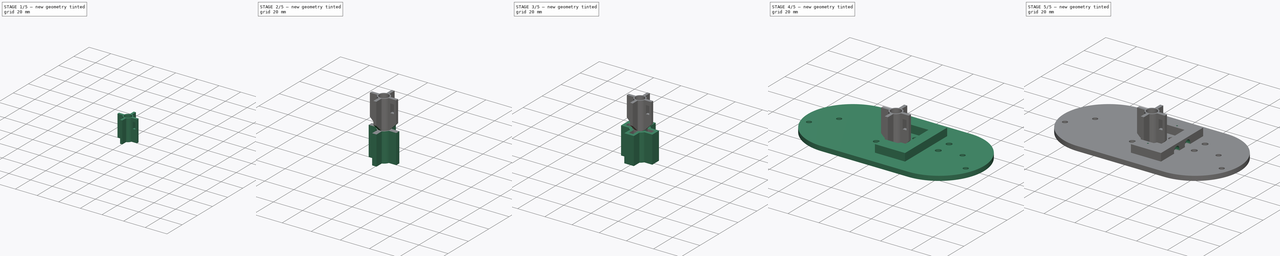
[diagram: build sequence overview — one tinted view per stage of 5, left to right]
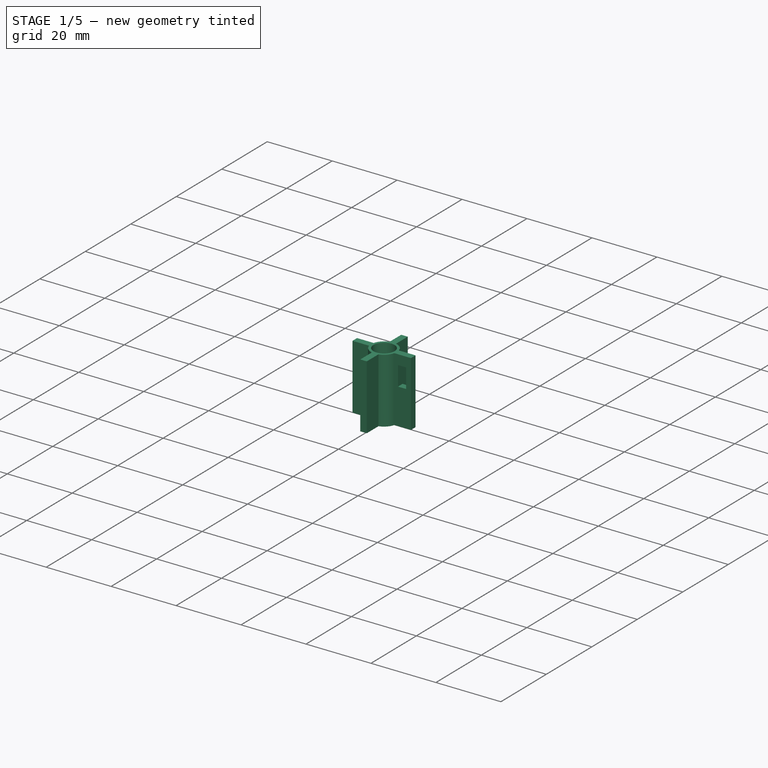
[diagram: stage 1 of 5 — iso view after this stage's code; geometry added in this stage tinted green]
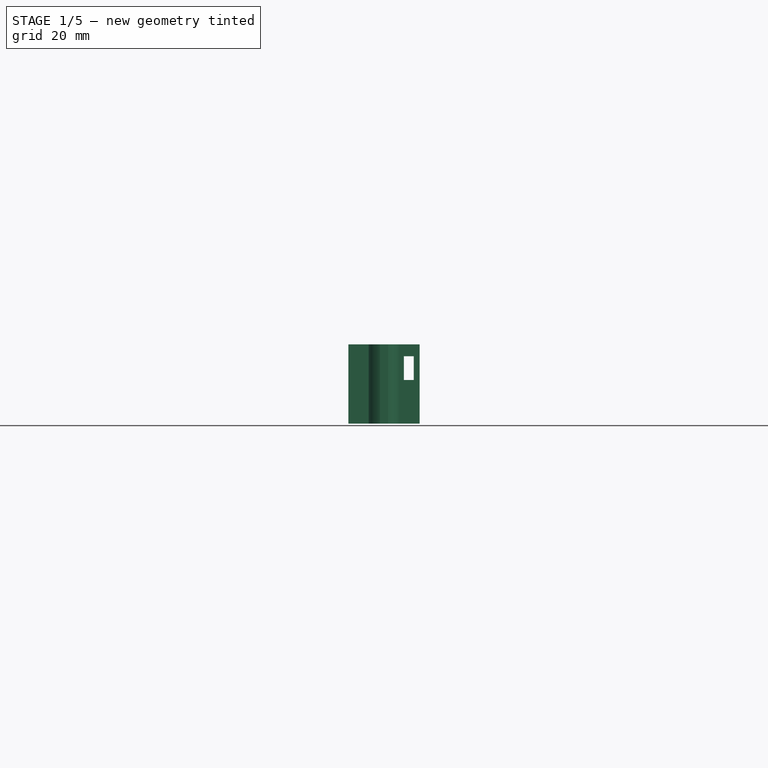
[diagram: stage 1 of 5 — front view after this stage's code; geometry added in this stage tinted green]
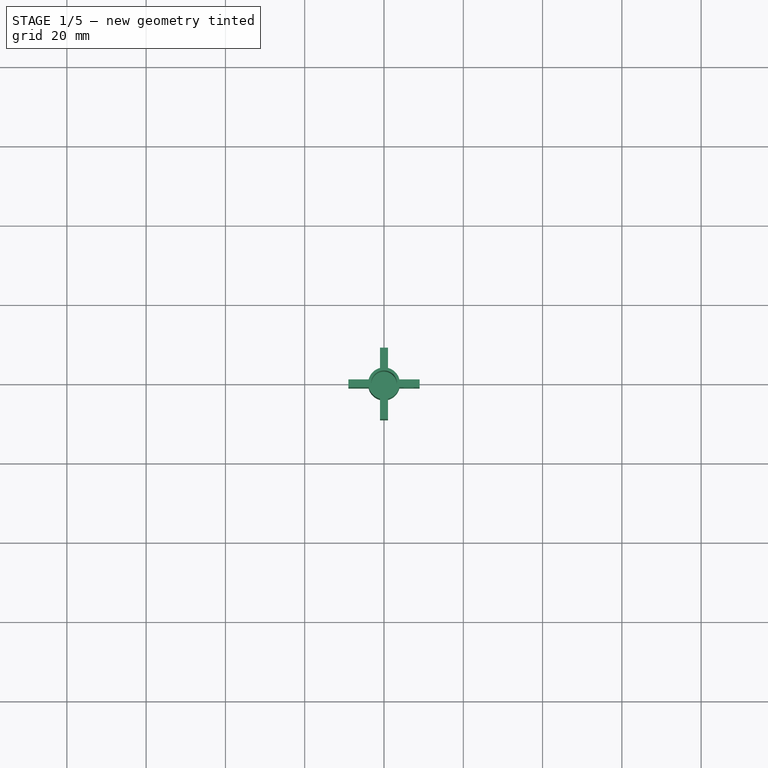
[diagram: stage 1 of 5 — top view after this stage's code; geometry added in this stage tinted green]
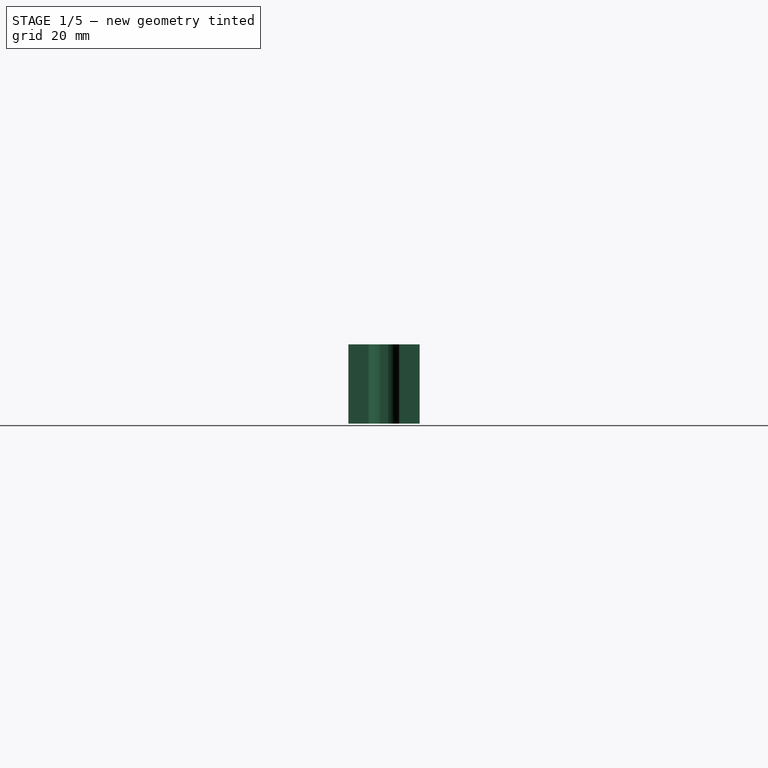
[diagram: stage 1 of 5 — right view after this stage's code; geometry added in this stage tinted green]
FCSTD DOCUMENT  (FreeCAD 0.18.4R)
Label: fulcrum3
License: All rights reserved
LicenseURL: http://en.wikipedia.org/wiki/All_rights_reserved
objects: Sketcher::SketchObject×12, PartDesign::Pocket×6, PartDesign::Pad×5, PartDesign::Body×4, PartDesign::ShapeBinder×3, PartDesign::Mirrored×2, PartDesign::Thickness×1, PartDesign::MultiTransform×1, PartDesign::Hole×1, TechDraw::DrawSVGTemplate×1, TechDraw::DrawViewPart×1, TechDraw::DrawPage×1, PartDesign::Chamfer×1
note: 48 computed .brp shape members not serialized (recipe doc carries the construction recipe); baked Part::Feature solids carry a one-line shape summary decoded from their .brp

FEATURE [Sketcher::SketchObject] Sketch
  MapMode = 5
  Support = -> [XY_Plane]
  sketch-geometry (16):
    g0: ArcOfCircle CenterX=0 CenterY=0 CenterZ=0 NormalX=0 NormalY=0 NormalZ=1 AngleXU=0 Radius=4 StartAngle=3.39427 EndAngle=4.45971
    g1: LineSegment StartX=-1 StartY=9 StartZ=0 EndX=1 EndY=9 EndZ=0
    g2: LineSegment StartX=1 StartY=9 StartZ=0 EndX=1 EndY=3.87298 EndZ=0
    g3: LineSegment StartX=1 StartY=-9 StartZ=0 EndX=-1 EndY=-9 EndZ=0
    g4: LineSegment StartX=-1 StartY=-9 StartZ=0 EndX=-1 EndY=-3.87298 EndZ=0
    g5: LineSegment StartX=-9 StartY=1 StartZ=0 EndX=-3.87298 EndY=1 EndZ=0
    g6: LineSegment StartX=9 StartY=1 StartZ=0 EndX=9 EndY=-1 EndZ=0
    g7: LineSegment StartX=9 StartY=-1 StartZ=0 EndX=3.87298 EndY=-1 EndZ=0
    g8: LineSegment StartX=-9 StartY=-1 StartZ=0 EndX=-9 EndY=1 EndZ=0
    g9: LineSegment StartX=-1 StartY=3.87298 StartZ=0 EndX=-1 EndY=9 EndZ=0
    g10: LineSegment StartX=3.87298 StartY=1 StartZ=0 EndX=9 EndY=1 EndZ=0
    g11: LineSegment StartX=1 StartY=-3.87298 StartZ=0 EndX=1 EndY=-9 EndZ=0
    g12: LineSegment StartX=-3.87298 StartY=-1 StartZ=0 EndX=-9 EndY=-1 EndZ=0
    g13: ArcOfCircle CenterX=0 CenterY=0 CenterZ=0 NormalX=0 NormalY=0 NormalZ=1 AngleXU=0 Radius=4 StartAngle=1.82348 EndAngle=2.88891
    g14: ArcOfCircle CenterX=0 CenterY=0 CenterZ=0 NormalX=0 NormalY=0 NormalZ=1 AngleXU=0 Radius=4 StartAngle=0.25268 EndAngle=1.31812
    g15: ArcOfCircle CenterX=0 CenterY=0 CenterZ=0 NormalX=0 NormalY=0 NormalZ=1 AngleXU=0 Radius=4 StartAngle=4.96507 EndAngle=6.03051
  constraints (43):
    c: Coincident(g0,g-1)
    c: Diameter(g0) = 8
    c: Coincident(g1,g2)
    c: Coincident(g11,g3)
    c: Coincident(g3,g4)
    c: Coincident(g9,g1)
    c: Horizontal(g1)
    c: Horizontal(g3)
    c: Vertical(g2)
    c: Vertical(g4)
    c: Coincident(g10,g6)
    c: Coincident(g6,g7)
    c: Coincident(g12,g8)
    c: Coincident(g8,g5)
    c: Horizontal(g5)
    c: Horizontal(g7)
    c: Vertical(g6)
    c: Vertical(g8)
    c: Symmetric(g1,g3,g0)
    c: Symmetric(g6,g5,g0)
    c: Equal(g2,g5)
    c: Equal(g1,g6)
    c: DistanceX(g1,g1) = 2
    c: DistanceY(g11,g2) = 18
    c: Tangent(g4,g9)
    c: Coincident(g0,g12)
    c: Coincident(g13,g5)
    c: Equal(g0,g13)
    c: Coincident(g14,g2)
    c: Coincident(g13,g9)
    c: Coincident(g0,g13)
    c: Equal(g0,g14)
    c: Coincident(g15,g7)
    c: Coincident(g14,g10)
    c: Coincident(g0,g14)
    c: Equal(g0,g15)
    c: Coincident(g0,g4)
    c: Coincident(g15,g11)
    c: Coincident(g0,g15)
    c: Tangent(g5,g10)
    c: Tangent(g9,g4)
    c: Tangent(g7,g12)
    c: Tangent(g11,g2)
FEATURE [PartDesign::Pad] Pad
  Length = 20
  Length2 = 100
  Profile = -> Sketch
  Refine = true
  Type = 0
FEATURE [Sketcher::SketchObject] Sketch001
  ExternalGeometry = -> [Pad]
  MapMode = 5
  Placement = pos=(0,-1,0) rot=(1,0,0;1.5708rad)
  Support = -> [Pad]
  sketch-geometry (4):
    g0: LineSegment StartX=5 StartY=17 StartZ=0 EndX=7.5 EndY=17 EndZ=0
    g1: LineSegment StartX=7.5 StartY=17 StartZ=0 EndX=7.5 EndY=11 EndZ=0
    g2: LineSegment StartX=7.5 StartY=11 StartZ=0 EndX=5 EndY=11 EndZ=0
    g3: LineSegment StartX=5 StartY=11 StartZ=0 EndX=5 EndY=17 EndZ=0
  constraints (12):
    c: Coincident(g0,g1)
    c: Coincident(g1,g2)
    c: Coincident(g2,g3)
    c: Coincident(g3,g0)
    c: Horizontal(g0)
    c: Horizontal(g2)
    c: Vertical(g1)
    c: Vertical(g3)
    c: DistanceX(g1,g-3) = 1.5
    c: DistanceX(g0,g0) = 2.5
    c: DistanceY(g3,g3) = 6
    c: DistanceY(g0,g-3) = 3
FEATURE [PartDesign::Pocket] Pocket
  BaseFeature = -> Pad
  Length = 5
  Length2 = 100
  Profile = -> Sketch001
  Refine = true
  Type = 1
FEATURE [Sketcher::SketchObject] Sketch002
  MapMode = 5
  Placement = pos=(0,0,20) rot=(0,0,1;0rad)
  Support = -> [Pocket]
  sketch-geometry (1):
    g0: Circle CenterX=0 CenterY=0 CenterZ=0 NormalX=0 NormalY=0 NormalZ=1 AngleXU=0 Radius=3.25
  constraints (2):
    c: Coincident(g0,g-1)
    c: Diameter(g0) = 6.5
FEATURE [PartDesign::Pocket] Pocket001
  BaseFeature = -> Pocket
  Length = 18
  Length2 = 100
  Profile = -> Sketch002
  Refine = true
  Type = 0
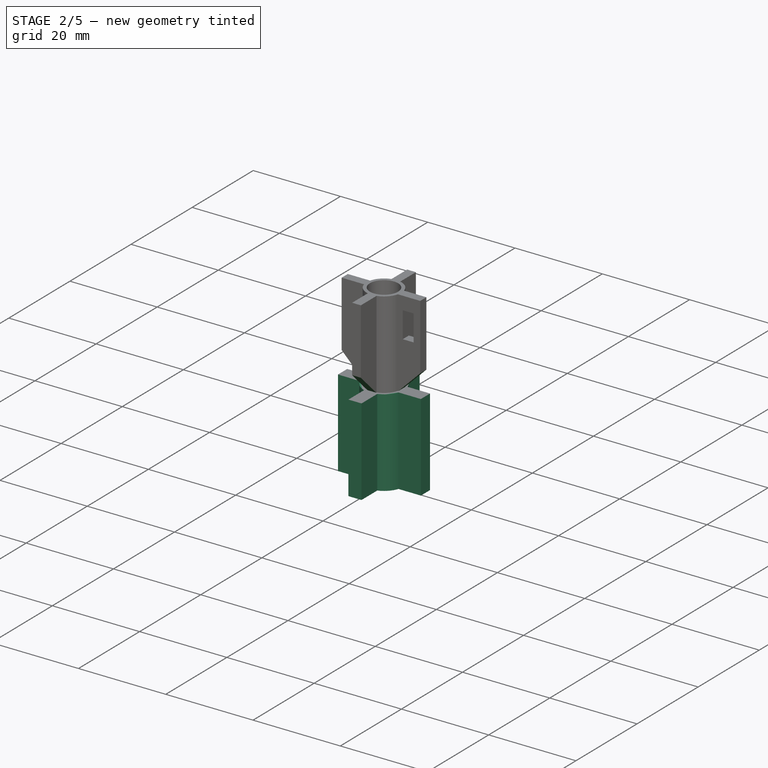
[diagram: stage 2 of 5 — iso view after this stage's code; geometry added in this stage tinted green]
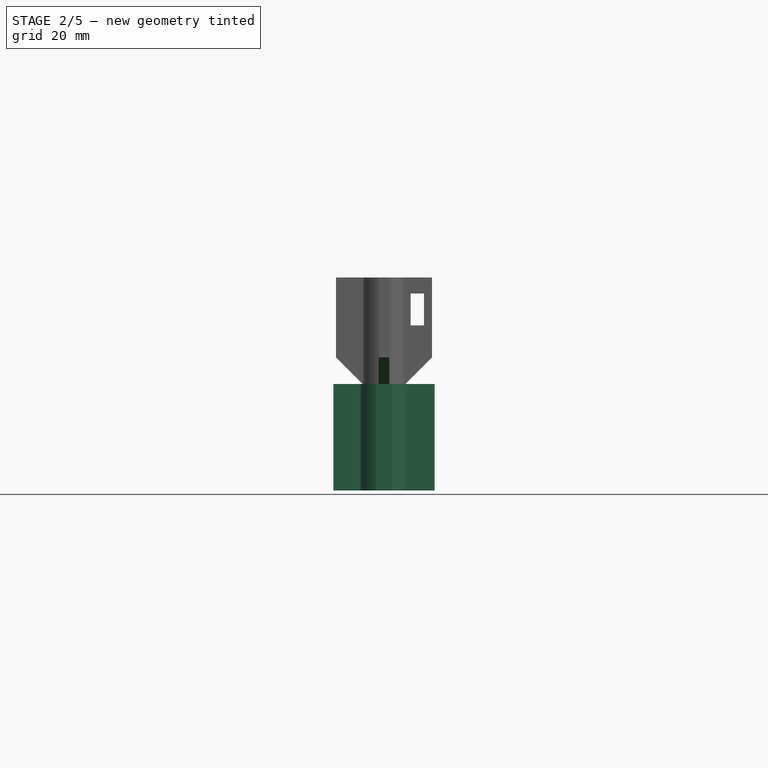
[diagram: stage 2 of 5 — front view after this stage's code; geometry added in this stage tinted green]
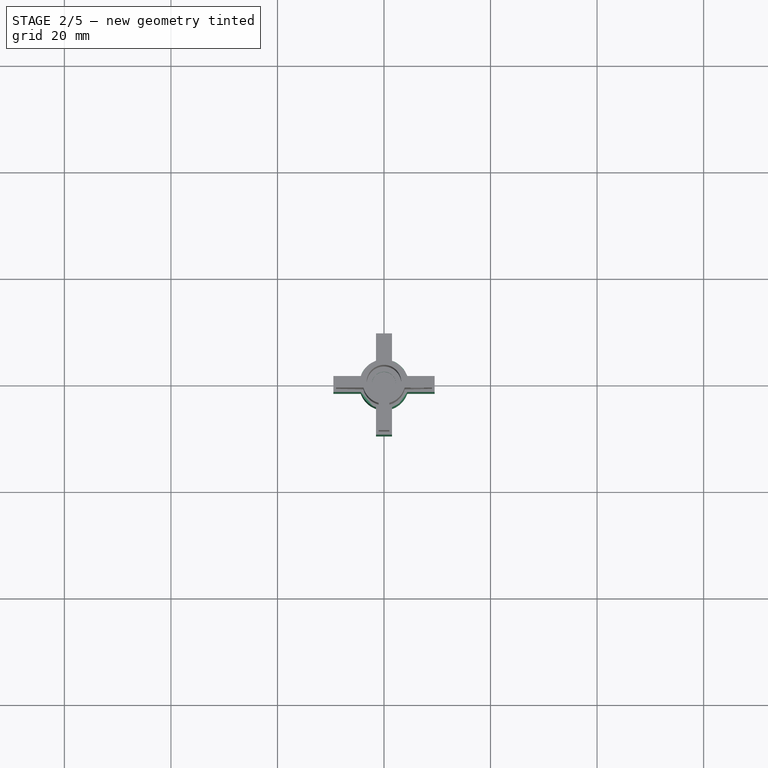
[diagram: stage 2 of 5 — top view after this stage's code; geometry added in this stage tinted green]
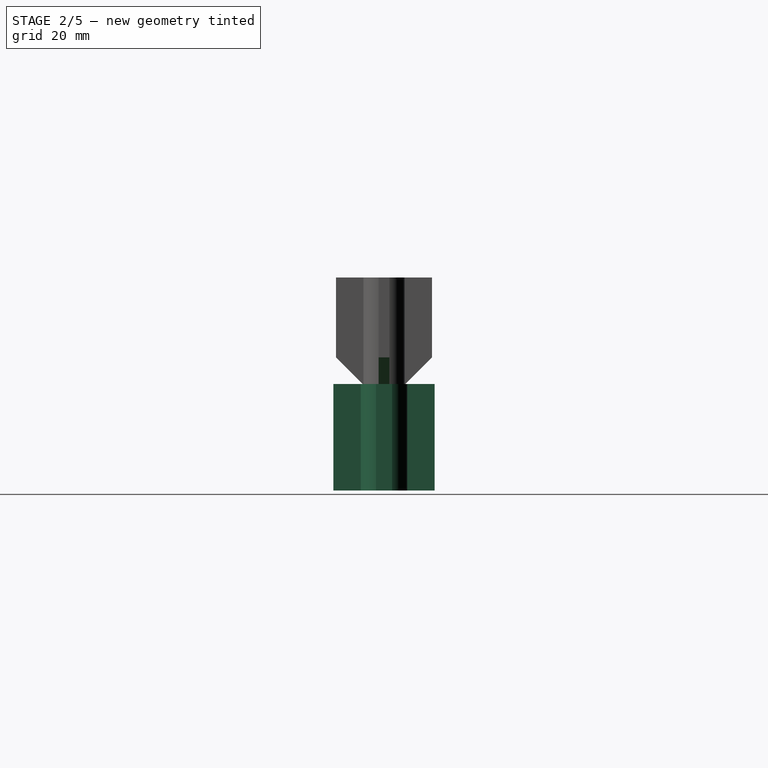
[diagram: stage 2 of 5 — right view after this stage's code; geometry added in this stage tinted green]
FEATURE [Sketcher::SketchObject] Sketch003
  MapMode = 5
  Placement = pos=(0,0,0) rot=(1,0,0;3.14159rad)
  Support = -> [Pocket001]
  sketch-geometry (1):
    g0: Circle CenterX=0 CenterY=0 CenterZ=0 NormalX=0 NormalY=0 NormalZ=1 AngleXU=0 Radius=2.25
  constraints (2):
    c: Coincident(g0,g-1)
    c: Diameter(g0) = 4.5
FEATURE [PartDesign::Pocket] Pocket002
  BaseFeature = -> Pocket001
  Length = 5
  Length2 = 100
  Profile = -> Sketch003
  Refine = true
  Type = 2
FEATURE [PartDesign::ShapeBinder] ShapeBinder
  Support = -> [Pocket002]
  TraceSupport = false
FEATURE [Sketcher::SketchObject] Sketch004
  ExternalGeometry = -> [ShapeBinder]
  MapMode = 5
  Placement = pos=(0,0,0) rot=(1,0,0;3.14159rad)
  Support = -> [ShapeBinder]
  sketch-geometry (16):
    g0: LineSegment StartX=-9.5 StartY=1.5 StartZ=0 EndX=-4.36288 EndY=1.5 EndZ=0
    g1: ArcOfCircle CenterX=0 CenterY=0 CenterZ=0 NormalX=0 NormalY=0 NormalZ=1 AngleXU=0 Radius=4.61354 StartAngle=1.90195 EndAngle=2.81044
    g2: LineSegment StartX=-1.5 StartY=4.36288 StartZ=0 EndX=-1.5 EndY=9.5 EndZ=0
    g3: LineSegment StartX=-1.5 StartY=9.5 StartZ=0 EndX=1.5 EndY=9.5 EndZ=0
    g4: LineSegment StartX=1.5 StartY=9.5 StartZ=0 EndX=1.5 EndY=4.36288 EndZ=0
    g5: ArcOfCircle CenterX=0 CenterY=0 CenterZ=0 NormalX=0 NormalY=0 NormalZ=1 AngleXU=0 Radius=4.61354 StartAngle=0.331149 EndAngle=1.23965
    g6: LineSegment StartX=4.36288 StartY=1.5 StartZ=0 EndX=9.5 EndY=1.5 EndZ=0
    g7: LineSegment StartX=9.5 StartY=1.5 StartZ=0 EndX=9.5 EndY=-1.5 EndZ=0
    g8: LineSegment StartX=9.5 StartY=-1.5 StartZ=0 EndX=4.36288 EndY=-1.5 EndZ=0
    g9: ArcOfCircle CenterX=0 CenterY=0 CenterZ=0 NormalX=0 NormalY=0 NormalZ=1 AngleXU=0 Radius=4.61354 StartAngle=5.04354 EndAngle=5.95204
    g10: LineSegment StartX=1.5 StartY=-4.36288 StartZ=0 EndX=1.5 EndY=-9.5 EndZ=0
    g11: LineSegment StartX=1.5 StartY=-9.5 StartZ=0 EndX=-1.5 EndY=-9.5 EndZ=0
    g12: LineSegment StartX=-1.5 StartY=-9.5 StartZ=0 EndX=-1.5 EndY=-4.36288 EndZ=0
    g13: ArcOfCircle CenterX=0 CenterY=0 CenterZ=0 NormalX=0 NormalY=0 NormalZ=1 AngleXU=0 Radius=4.61354 StartAngle=3.47274 EndAngle=4.38124
    g14: LineSegment StartX=-4.36288 StartY=-1.5 StartZ=0 EndX=-9.5 EndY=-1.5 EndZ=0
    g15: LineSegment StartX=-9.5 StartY=-1.5 StartZ=0 EndX=-9.5 EndY=1.5 EndZ=0
  constraints (42):
    c: Coincident(g1,g2)
    c: Vertical(g2)
    c: Coincident(g2,g3)
    c: Coincident(g5,g6)
    c: Coincident(g6,g7)
    c: Vertical(g7)
    c: Coincident(g7,g8)
    c: Coincident(g9,g10)
    c: Coincident(g10,g11)
    c: Horizontal(g11)
    c: Coincident(g11,g12)
    c: Coincident(g13,g14)
    c: Coincident(g14,g15)
    c: Coincident(g15,g0)
    c: Coincident(g1,g13)
    c: Coincident(g1,g-1)
    c: Coincident(g1,g5)
    c: Coincident(g1,g9)
    c: Coincident(g0,g1)
    c: Coincident(g4,g5)
    c: Coincident(g8,g9)
    c: Coincident(g13,g12)
    c: Equal(g0,g2)
    c: Equal(g2,g4)
    c: Equal(g4,g6)
    c: Equal(g6,g8)
    c: Equal(g8,g10)
    c: Equal(g10,g12)
    c: Equal(g12,g14)
    c: Coincident(g4,g3)
    c: Equal(g15,g3)
    c: Equal(g3,g7)
    c: Equal(g7,g11)
    c: Tangent(g0,g6)
    c: Tangent(g2,g12)
    c: Tangent(g10,g4)
    c: Tangent(g8,g14)
    c: Symmetric(g0,g14,g-1)
    c: Symmetric(g2,g3,g-2)
    c: DistanceX(g0,g-4) = 0.5
    c: DistanceY(g-4,g0) = 0.5
    c: Distance(g0,g-19) = 0.7
FEATURE [PartDesign::Pad] Pad001
  Length = 20
  Length2 = 100
  Profile = -> Sketch004
  Refine = true
  Type = 0
FEATURE [PartDesign::Body] Body002  label="base"
  Group = -> [ShapeBinder001,Sketch007,ShapeBinder002,Pad004]
  Origin = -> Origin002
  Tip = -> Pad004
FEATURE [TechDraw::DrawSVGTemplate] Template
  Height = 210
  Orientation = 1
  Width = 297
FEATURE [TechDraw::DrawViewPart] View
  CoarseView = false
  Direction = (0,0,1)
  Focus = 100
  HardHidden = false
  IsoCount = 0
  IsoHidden = false
  IsoVisible = false
  LockPosition = false
  Perspective = false
  Rotation = 0
  ScaleType = 0
  SeamHidden = false
  SeamVisible = false
  SmoothHidden = false
  SmoothVisible = false
  Source = -> [Body002]
  X = 148.5
  Y = 105
FEATURE [TechDraw::DrawPage] Page
  KeepUpdated = true
  ProjectionType = 0
  Template = -> Template
  Views = -> [View]
FEATURE [PartDesign::Chamfer] Chamfer
  Base = -> Pocket002 [Edge11,Edge12,Edge20,Edge19]
  BaseFeature = -> Pocket002
  Size = 5
FEATURE [PartDesign::Body] Body  label="slider"
  Group = -> [Sketch,Pad,Sketch001,Pocket,Sketch002,Pocket001,Sketch003,Pocket002,Chamfer]
  Origin = -> Origin
  Placement = pos=(0,1e-15,31) rot=(1,0,0;3.14159rad)
  Tip = -> Chamfer
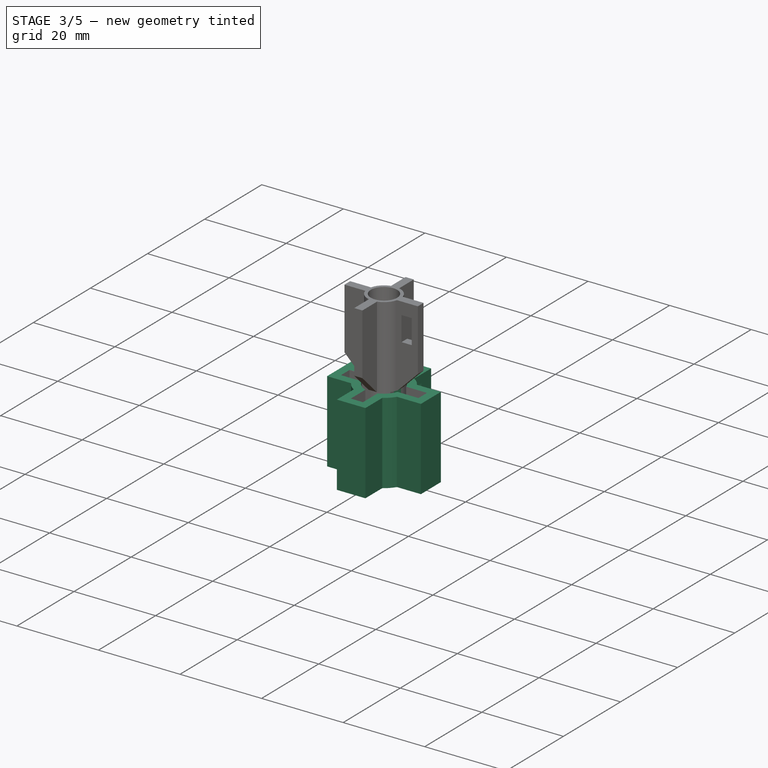
[diagram: stage 3 of 5 — iso view after this stage's code; geometry added in this stage tinted green]
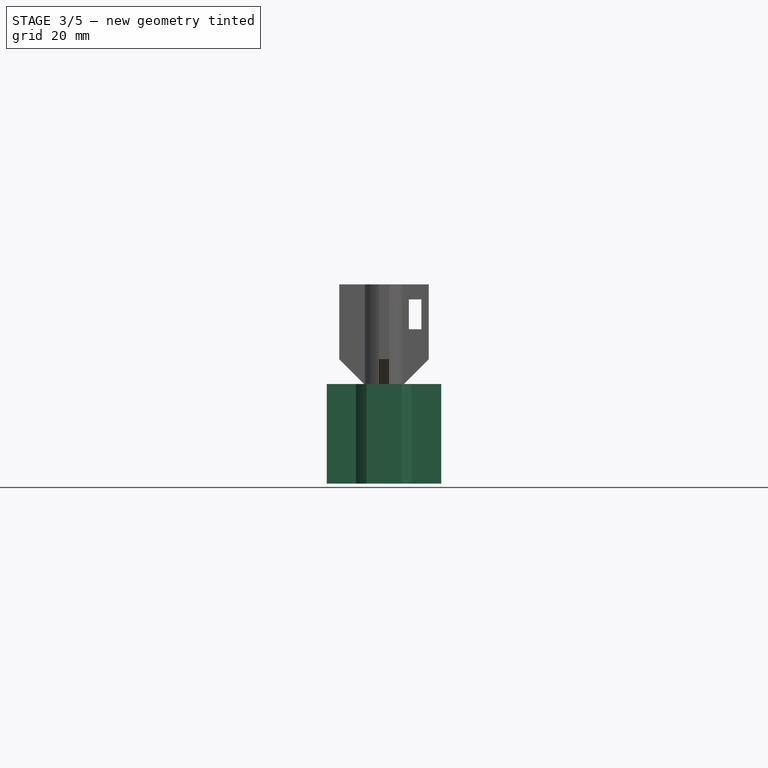
[diagram: stage 3 of 5 — front view after this stage's code; geometry added in this stage tinted green]
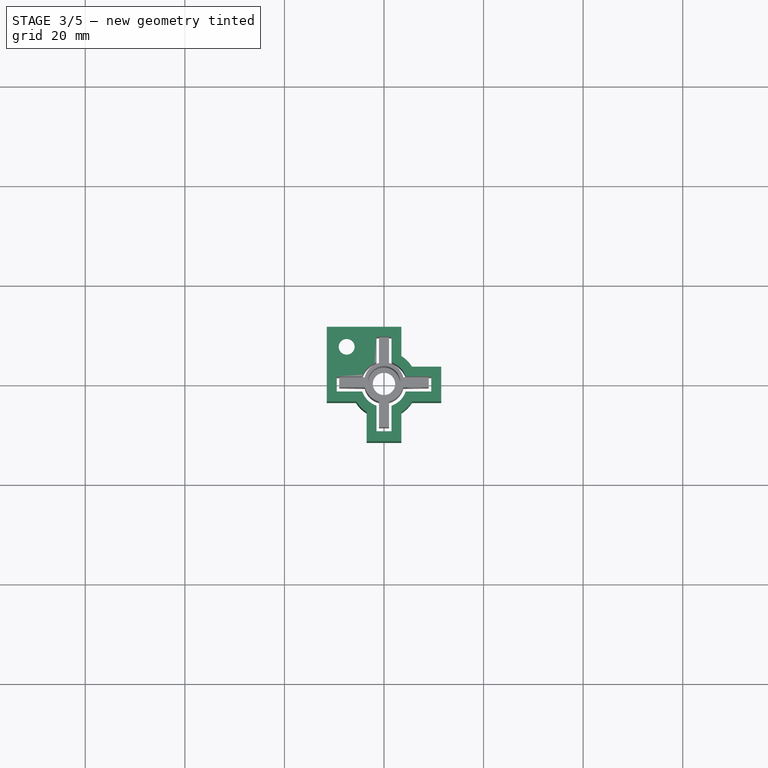
[diagram: stage 3 of 5 — top view after this stage's code; geometry added in this stage tinted green]
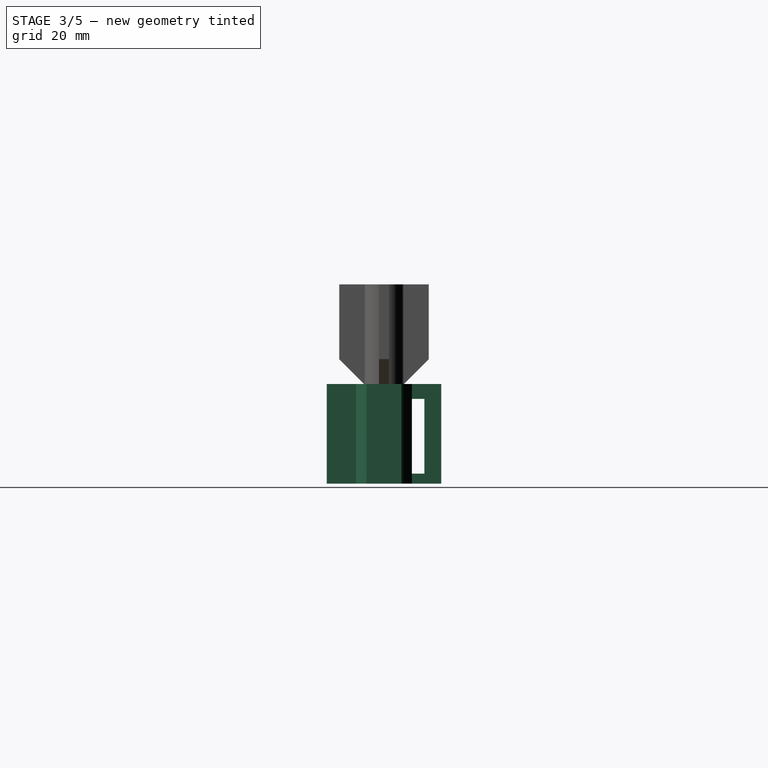
[diagram: stage 3 of 5 — right view after this stage's code; geometry added in this stage tinted green]
FEATURE [PartDesign::Thickness] Thickness
  Base = -> Pad001 [Face18,Face17]
  BaseFeature = -> Pad001
  Join = 1
  Mode = 1
  Value = 2
FEATURE [Sketcher::SketchObject] Sketch005
  ExternalGeometry = -> [Thickness]
  MapMode = 5
  Placement = pos=(3.5,1.734e-13,0) rot=(0.57735,0.57735,0.57735;2.0944rad)
  Support = -> [Thickness]
  sketch-geometry (5):
    g0: LineSegment StartX=5.6115 StartY=-2 StartZ=0 EndX=8.1115 EndY=-2 EndZ=0
    g1: LineSegment StartX=8.1115 StartY=-2 StartZ=0 EndX=8.1115 EndY=-18 EndZ=0
    g2: LineSegment StartX=8.1115 StartY=-18 StartZ=0 EndX=5.6115 EndY=-18 EndZ=0
    g3: LineSegment StartX=5.6115 StartY=-18 StartZ=0 EndX=5.6115 EndY=-2 EndZ=0
    g4: GeomPoint X=5.6115 Y=-10 Z=0
  constraints (12):
    c: Coincident(g0,g1)
    c: Coincident(g1,g2)
    c: Coincident(g2,g3)
    c: Coincident(g3,g0)
    c: Horizontal(g0)
    c: Horizontal(g2)
    c: Vertical(g1)
    c: Vertical(g3)
    c: Symmetric(g0,g2,g4)
    c: Symmetric(g-4,g-4,g4)
    c: DistanceY(g0,g-3) = 2
    c: DistanceX(g0,g0) = 2.5
FEATURE [PartDesign::Pocket] Pocket003
  BaseFeature = -> Thickness
  Length = 5
  Length2 = 100
  Profile = -> Sketch005
  Refine = true
  Type = 1
FEATURE [Sketcher::SketchObject] Sketch006
  ExternalGeometry = -> [Pocket003]
  MapMode = 5
  Support = -> [XY_Plane001]
  sketch-geometry (5):
    g0: LineSegment StartX=-3.5 StartY=11.5 StartZ=0 EndX=-11.5 EndY=11.5 EndZ=0
    g1: LineSegment StartX=-11.5 StartY=11.5 StartZ=0 EndX=-11.5 EndY=3.5 EndZ=0
    g2: LineSegment StartX=-11.5 StartY=3.5 StartZ=0 EndX=-3.5 EndY=3.5 EndZ=0
    g3: LineSegment StartX=-3.5 StartY=3.5 StartZ=0 EndX=-3.5 EndY=11.5 EndZ=0
    g4: Circle CenterX=-7.5 CenterY=7.5 CenterZ=0 NormalX=0 NormalY=0 NormalZ=1 AngleXU=0 Radius=1.6
  constraints (12):
    c: Coincident(g0,g1)
    c: Coincident(g1,g2)
    c: Coincident(g2,g3)
    c: Coincident(g3,g0)
    c: Horizontal(g0)
    c: Horizontal(g2)
    c: Vertical(g1)
    c: Vertical(g3)
    c: Coincident(g0,g-3)
    c: Coincident(g1,g-4)
    c: Symmetric(g0,g1,g4)
    c: Diameter(g4) = 3.2
FEATURE [PartDesign::Pad] Pad002
  BaseFeature = -> Pocket003
  Length = 3
  Length2 = 100
  Profile = -> Sketch006
  Refine = true
  Reversed = true
  Type = 0
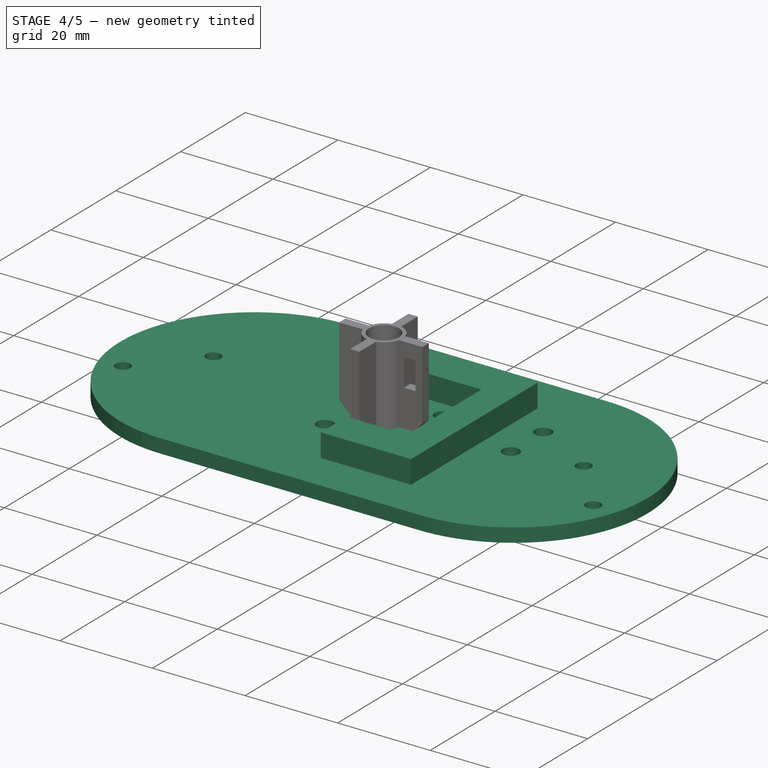
[diagram: stage 4 of 5 — iso view after this stage's code; geometry added in this stage tinted green]
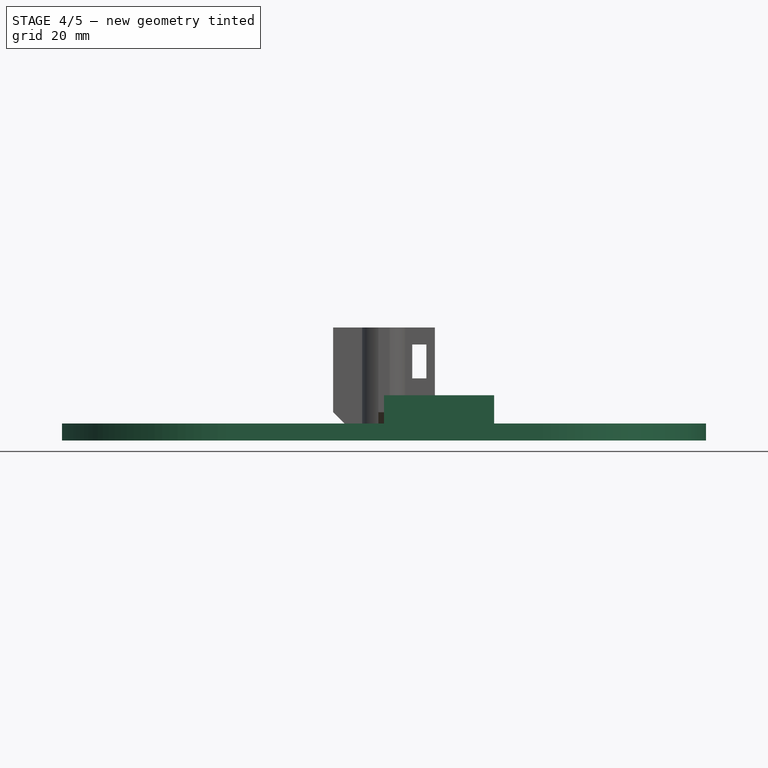
[diagram: stage 4 of 5 — front view after this stage's code; geometry added in this stage tinted green]
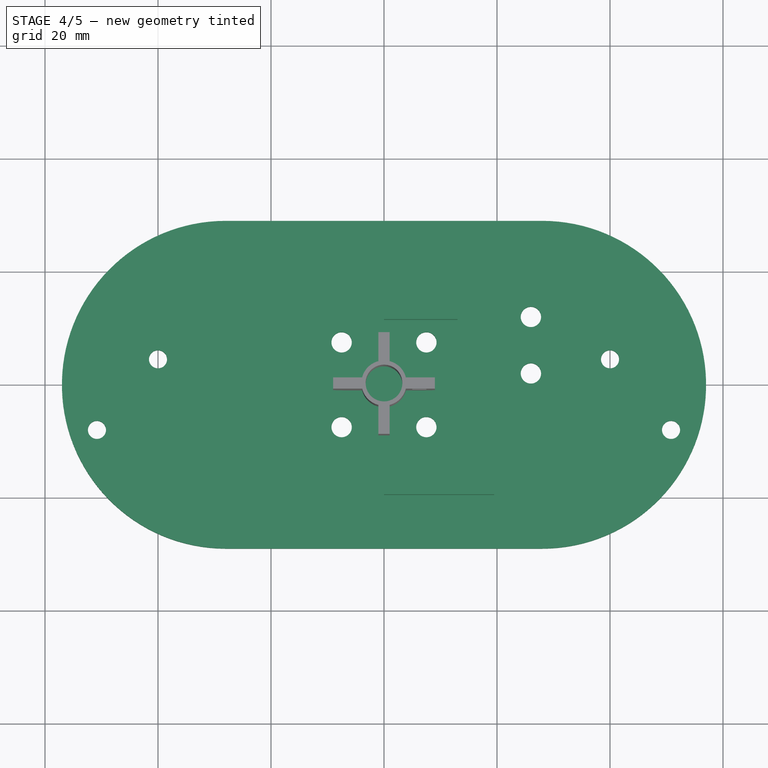
[diagram: stage 4 of 5 — top view after this stage's code; geometry added in this stage tinted green]
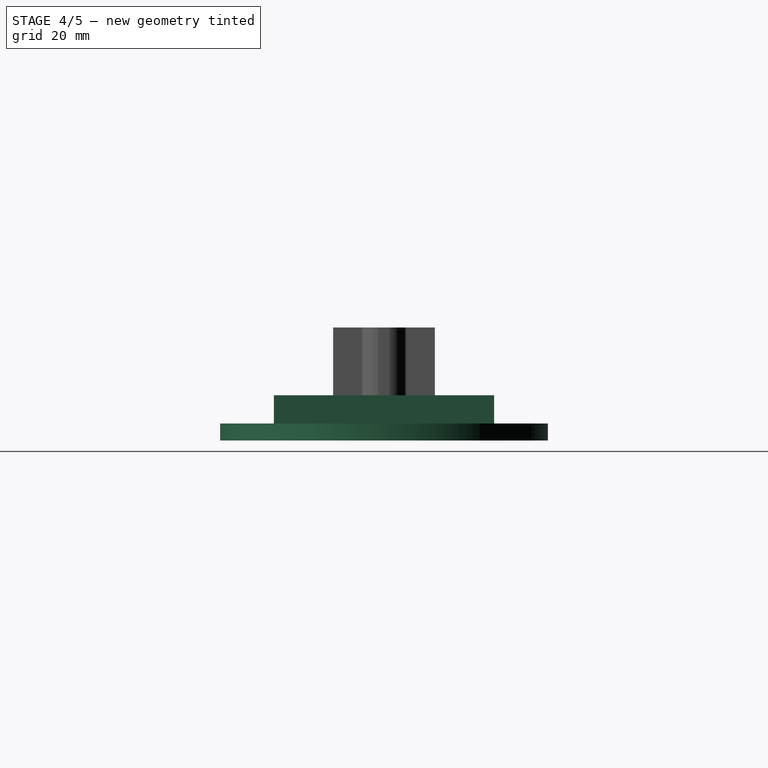
[diagram: stage 4 of 5 — right view after this stage's code; geometry added in this stage tinted green]
FEATURE [PartDesign::Mirrored] Mirrored
  MirrorPlane = -> Sketch006 [V_Axis]
  Refine = true
FEATURE [PartDesign::Mirrored] Mirrored001
  MirrorPlane = -> Sketch006 [H_Axis]
  Refine = true
FEATURE [PartDesign::MultiTransform] MultiTransform
  BaseFeature = -> Pad002
  Originals = -> [Pad002]
  Refine = true
  Transformations = -> [Mirrored,Mirrored001]
FEATURE [PartDesign::Body] Body001  label="Mount"
  Group = -> [ShapeBinder,Sketch004,Pad001,Thickness,Sketch005,Pocket003,Sketch006,Pad002,MultiTransform,Mirrored,Mirrored001]
  Origin = -> Origin001
  Placement = pos=(-1e-15,-5e-15,4) rot=(0.707107,0.707107,0;3.14159rad)
  Tip = -> MultiTransform
FEATURE [PartDesign::ShapeBinder] ShapeBinder001
  Support = -> [MultiTransform]
  TraceSupport = false
FEATURE [Sketcher::SketchObject] Sketch007
  ExternalGeometry = -> [ShapeBinder001]
  MapMode = 5
  Support = -> [ShapeBinder001]
  sketch-geometry (14):
    g0: Circle CenterX=-7.5 CenterY=7.5 CenterZ=0 NormalX=0 NormalY=0 NormalZ=1 AngleXU=0 Radius=1.8
    g1: Circle CenterX=7.5 CenterY=7.5 CenterZ=0 NormalX=0 NormalY=0 NormalZ=1 AngleXU=0 Radius=1.8
    g2: Circle CenterX=7.5 CenterY=-7.5 CenterZ=0 NormalX=0 NormalY=0 NormalZ=1 AngleXU=0 Radius=1.8
    g3: Circle CenterX=-7.5 CenterY=-7.5 CenterZ=0 NormalX=0 NormalY=0 NormalZ=1 AngleXU=0 Radius=1.8
    g4: Circle CenterX=-50.8 CenterY=-8 CenterZ=0 NormalX=0 NormalY=0 NormalZ=1 AngleXU=0 Radius=1.6
    g5: Circle CenterX=50.8 CenterY=-8 CenterZ=0 NormalX=0 NormalY=0 NormalZ=1 AngleXU=0 Radius=1.6
    g6: Circle CenterX=-40 CenterY=4.5 CenterZ=0 NormalX=0 NormalY=0 NormalZ=1 AngleXU=0 Radius=1.6
    g7: Circle CenterX=40 CenterY=4.5 CenterZ=0 NormalX=0 NormalY=0 NormalZ=1 AngleXU=0 Radius=1.6
    g8: Circle CenterX=26 CenterY=12 CenterZ=0 NormalX=0 NormalY=0 NormalZ=1 AngleXU=0 Radius=1.8
    g9: Circle CenterX=26 CenterY=2 CenterZ=0 NormalX=0 NormalY=0 NormalZ=1 AngleXU=0 Radius=1.8
    g10: ArcOfCircle CenterX=-28 CenterY=-8e-16 CenterZ=0 NormalX=0 NormalY=0 NormalZ=1 AngleXU=0 Radius=29 StartAngle=1.5708 EndAngle=4.71239
    g11: ArcOfCircle CenterX=28 CenterY=8e-16 CenterZ=0 NormalX=0 NormalY=0 NormalZ=1 AngleXU=0 Radius=29 StartAngle=4.71239 EndAngle=7.85398
    g12: LineSegment StartX=-28 StartY=-29 StartZ=0 EndX=28 EndY=-29 EndZ=0
    g13: LineSegment StartX=-28 StartY=29 StartZ=0 EndX=28 EndY=29 EndZ=0
  constraints (33):
    c: Coincident(g0,g-3)
    c: Coincident(g1,g-4)
    c: Coincident(g2,g-5)
    c: Equal(g2,g1)
    c: Equal(g1,g0)
    c: Equal(g0,g3)
    c: Diameter(g0) = 3.6
    c: Coincident(g3,g-6)
    c: Symmetric(g4,g5,g-2)
    c: DistanceX(g4,g5) = 101.6
    c: DistanceY(g4,g-1) = 8
    c: Diameter(g4) = 3.2
    c: Equal(g4,g5)
    c: Symmetric(g6,g7,g-2)
    c: Equal(g7,g6)
    c: Diameter(g6) = 3.2
    c: DistanceY(g-1,g6) = 4.5
    c: DistanceX(g6,g7) = 80
    c: Equal(g9,g8)
    c: Diameter(g8) = 3.6
    c: DistanceY(g9,g8) = 10
    c: DistanceX(g-1,g9) = 26
    c: DistanceY(g-1,g9) = 2
    c: Vertical(g9,g8)
    c: Tangent(g10,g13) = 1.5708
    c: Tangent(g10,g12) = -1.5708
    c: Tangent(g12,g11) = -1.5708
    c: Tangent(g13,g11) = 1.5708
    c: Horizontal(g12)
    c: Equal(g10,g11)
    c: Symmetric(g10,g11,g-1)
    c: Diameter(g11) = 58
    c: DistanceX(g13,g13) = 56
FEATURE [PartDesign::ShapeBinder] ShapeBinder002
  Placement = pos=(0,0,-20) rot=(0,0,1;0rad)
  Support = -> [MultiTransform]
  TraceSupport = false
FEATURE [Sketcher::SketchObject] Sketch009
  MapMode = 5
  Support = -> [XY_Plane003]
  sketch-geometry (8):
    g0: LineSegment StartX=0 StartY=19.5 StartZ=0 EndX=0 EndY=11.5 EndZ=0
    g1: LineSegment StartX=0 StartY=11.5 StartZ=0 EndX=13 EndY=11.5 EndZ=0
    g2: LineSegment StartX=13 StartY=11.5 StartZ=0 EndX=13 EndY=-11.5 EndZ=0
    g3: LineSegment StartX=13 StartY=-11.5 StartZ=0 EndX=0 EndY=-11.5 EndZ=0
    g4: LineSegment StartX=0 StartY=-11.5 StartZ=0 EndX=0 EndY=-19.5 EndZ=0
    g5: LineSegment StartX=0 StartY=-19.5 StartZ=0 EndX=19.5 EndY=-19.5 EndZ=0
    g6: LineSegment StartX=19.5 StartY=-19.5 StartZ=0 EndX=19.5 EndY=19.5 EndZ=0
    g7: LineSegment StartX=19.5 StartY=19.5 StartZ=0 EndX=0 EndY=19.5 EndZ=0
  constraints (23):
    c: PointOnObject(g0,g-2)
    c: PointOnObject(g0,g-2)
    c: Coincident(g0,g1)
    c: Horizontal(g1)
    c: Coincident(g1,g2)
    c: Vertical(g2)
    c: Coincident(g2,g3)
    c: Horizontal(g3)
    c: Coincident(g3,g4)
    c: PointOnObject(g4,g-2)
    c: Coincident(g4,g5)
    c: Horizontal(g5)
    c: Coincident(g5,g6)
    c: Coincident(g6,g7)
    c: Coincident(g7,g0)
    c: Horizontal(g7)
    c: Equal(g0,g4)
    c: Equal(g3,g1)
    c: DistanceY(g2,g2) = 23
    c: DistanceY(g0,g0) = 8
    c: DistanceX(g1,g1) = 13
    c: Symmetric(g6,g5,g-1)
    c: DistanceX(g1,g6) = 6.5
FEATURE [PartDesign::Pad] Pad003
  Length = 8
  Length2 = 100
  Profile = -> Sketch009
  Refine = true
  Type = 0
FEATURE [PartDesign::Body] Body003  label="servo mount"
  Group = -> [Sketch009,Pad003,Sketch011,Hole,Sketch010,Pocket004,Sketch008,Pocket005]
  Origin = -> Origin003
  Placement = pos=(30,7,22) rot=(0.707107,0,-0.707107;3.14159rad)
  Tip = -> Pocket005
FEATURE [PartDesign::Pad] Pad004
  Length = 3
  Length2 = 100
  Profile = -> Sketch007
  Refine = true
  Type = 0
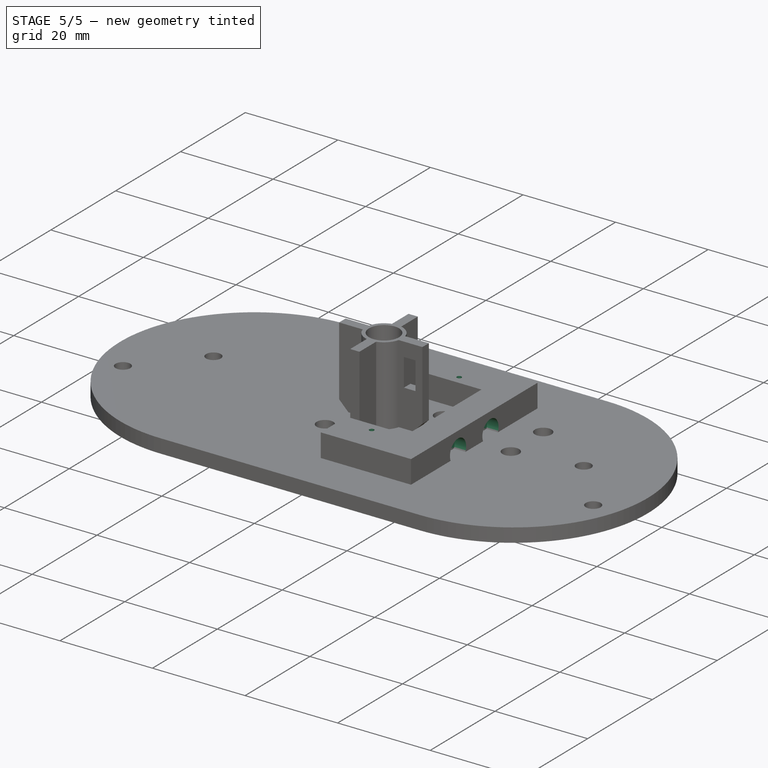
[diagram: stage 5 of 5 — iso view after this stage's code; geometry added in this stage tinted green]
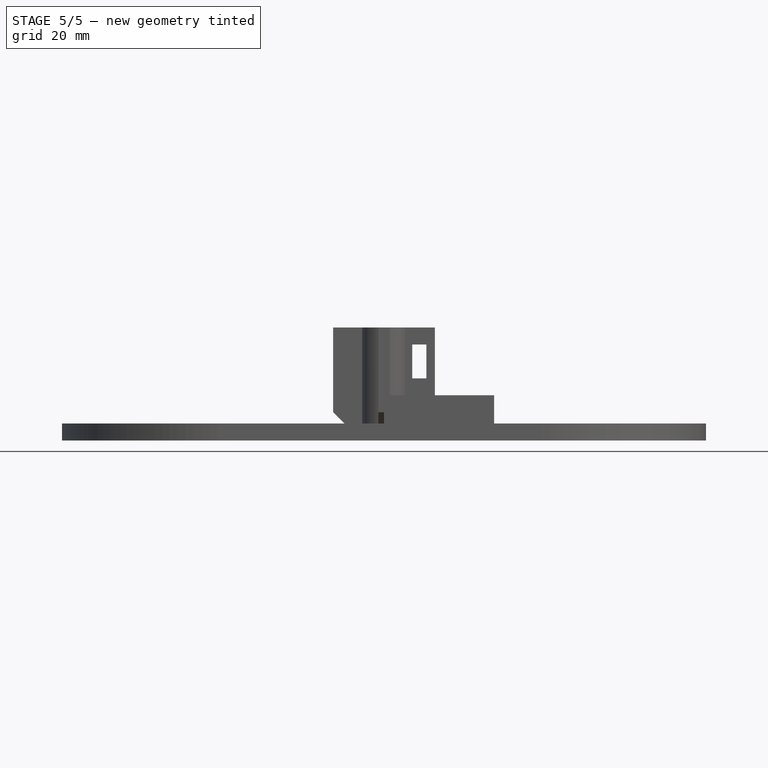
[diagram: stage 5 of 5 — front view after this stage's code; geometry added in this stage tinted green]
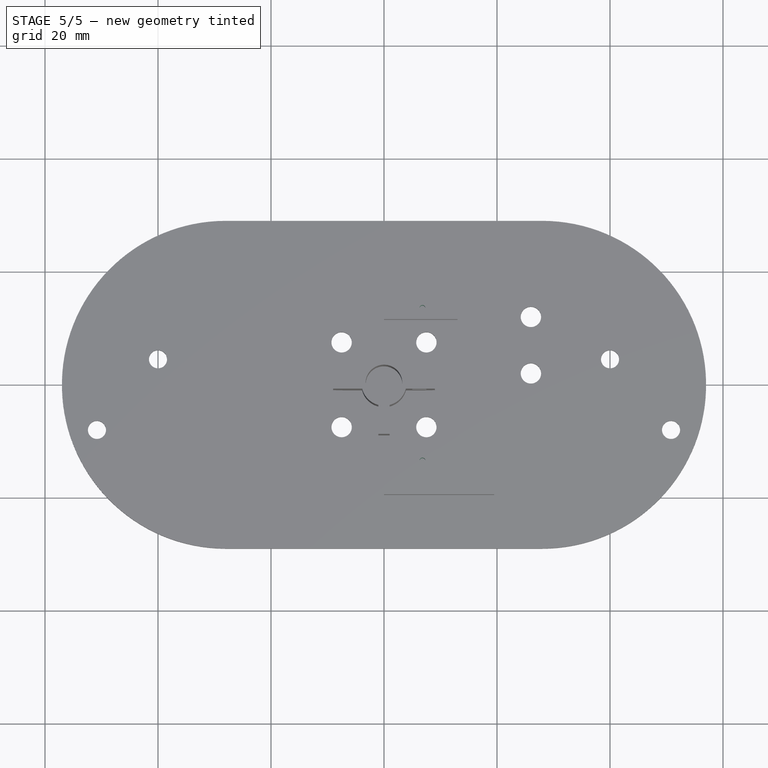
[diagram: stage 5 of 5 — top view after this stage's code; geometry added in this stage tinted green]
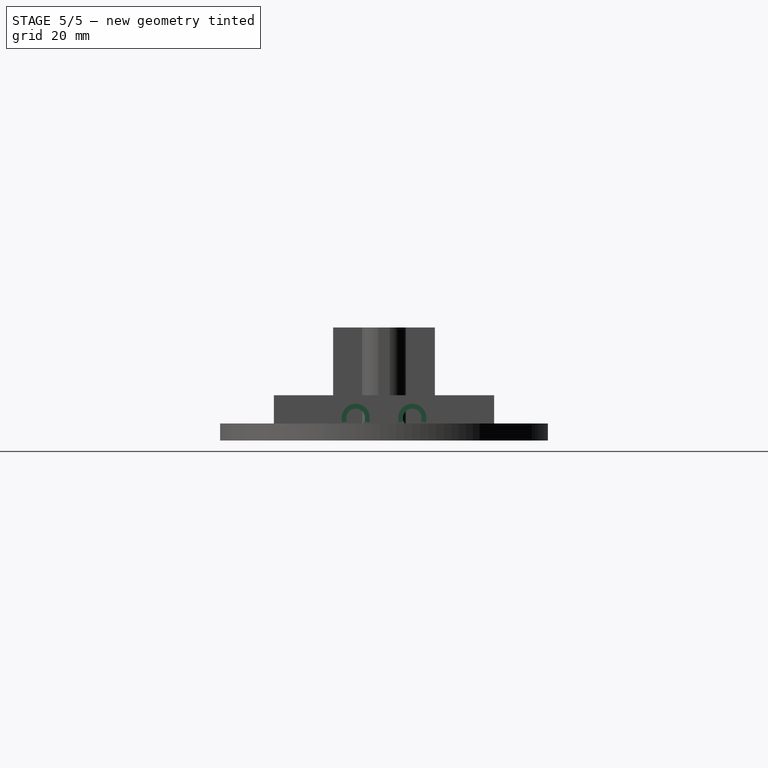
[diagram: stage 5 of 5 — right view after this stage's code; geometry added in this stage tinted green]
FEATURE [Sketcher::SketchObject] Sketch011
  ExternalGeometry = -> [Pad003]
  MapMode = 5
  Placement = pos=(13,0,0) rot=(0.57735,-0.57735,-0.57735;2.0944rad)
  Support = -> [Pad003]
  sketch-geometry (3):
    g0: Circle CenterX=-5 CenterY=4 CenterZ=0 NormalX=0 NormalY=0 NormalZ=1 AngleXU=0 Radius=1.5
    g1: Circle CenterX=5 CenterY=4 CenterZ=0 NormalX=0 NormalY=0 NormalZ=1 AngleXU=0 Radius=1.5
    g2: GeomPoint X=-11.5 Y=4 Z=0
  constraints (6):
    c: Symmetric(g-3,g-3,g2)
    c: Horizontal(g0,g2)
    c: Symmetric(g0,g1,g-2)
    c: DistanceX(g0,g1) = 10
    c: Diameter(g0) = 3
    c: Equal(g0,g1)
FEATURE [PartDesign::Hole] Hole
  BaseFeature = -> Pad003
  Depth = 25
  DepthType = 0
  Diameter = 3.3
  DrillPoint = 1
  DrillPointAngle = 118
  HoleCutCountersinkAngle = 90
  HoleCutDepth = 1.8
  HoleCutDiameter = 6
  HoleCutType = 1
  ModelActualThread = false
  Profile = -> Sketch011
  Refine = true
  Tapered = false
  TaperedAngle = 90
  ThreadAngle = 0
  ThreadClass = 0
  ThreadCutOffInner = 0
  ThreadCutOffOuter = 0
  ThreadDirection = 0
  ThreadFit = 0
  ThreadPitch = 0
  ThreadSize = 9
  ThreadType = 2
  Threaded = false
FEATURE [Sketcher::SketchObject] Sketch010
  ExternalGeometry = -> [Hole]
  MapMode = 5
  Placement = pos=(0,0,8) rot=(0,0,1;0rad)
  Support = -> [Hole]
  sketch-geometry (2):
    g0: Circle CenterX=6.8 CenterY=13.5 CenterZ=0 NormalX=0 NormalY=0 NormalZ=1 AngleXU=0 Radius=0.5
    g1: Circle CenterX=6.8 CenterY=-13.5 CenterZ=0 NormalX=0 NormalY=0 NormalZ=1 AngleXU=0 Radius=0.5
  constraints (5):
    c: Symmetric(g0,g1,g-1)
    c: Equal(g0,g1)
    c: DistanceX(g0,g-3) = 6.2
    c: DistanceY(g-3,g0) = 2
    c: Diameter(g0) = 1
FEATURE [PartDesign::Pocket] Pocket004
  BaseFeature = -> Hole
  Length = 5
  Length2 = 100
  Profile = -> Sketch010
  Refine = true
  Type = 1
FEATURE [Sketcher::SketchObject] Sketch008
  ExternalGeometry = -> [Pocket004]
  MapMode = 5
  Placement = pos=(19.5,0,0) rot=(0.57735,0.57735,0.57735;2.0944rad)
  Support = -> [Pocket004]
  sketch-geometry (2):
    g0: Circle CenterX=-5 CenterY=4 CenterZ=0 NormalX=0 NormalY=0 NormalZ=1 AngleXU=0 Radius=2.5
    g1: Circle CenterX=5 CenterY=4 CenterZ=0 NormalX=0 NormalY=0 NormalZ=1 AngleXU=0 Radius=2.5
  constraints (4):
    c: Coincident(g0,g-3)
    c: Coincident(g1,g-4)
    c: Equal(g0,g1)
    c: Diameter(g0) = 5
FEATURE [PartDesign::Pocket] Pocket005
  BaseFeature = -> Pocket004
  Length = 2.5
  Length2 = 100
  Profile = -> Sketch008
  Refine = true
  Type = 0
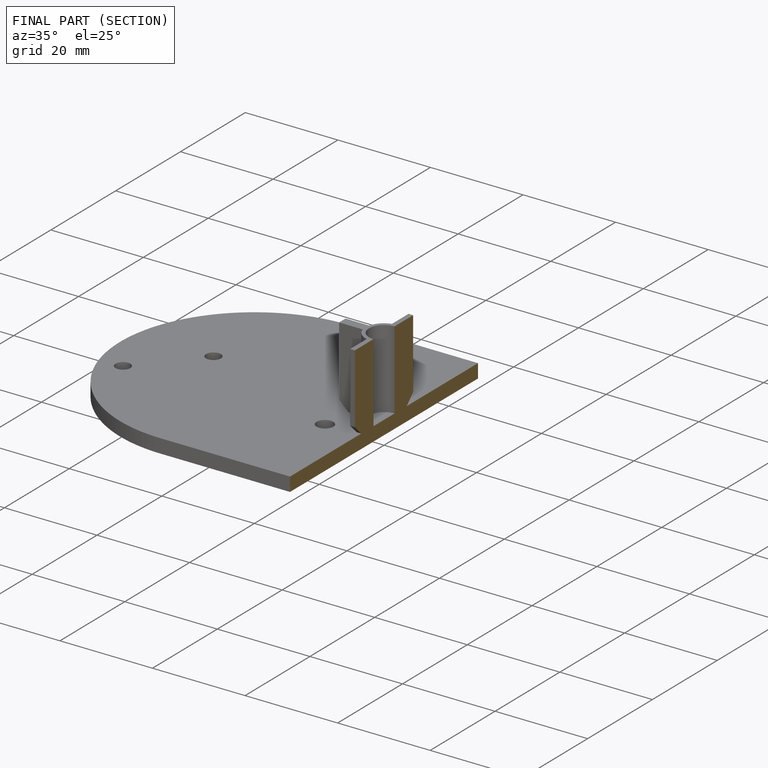
[diagram: finished part — half-section view (interior)]
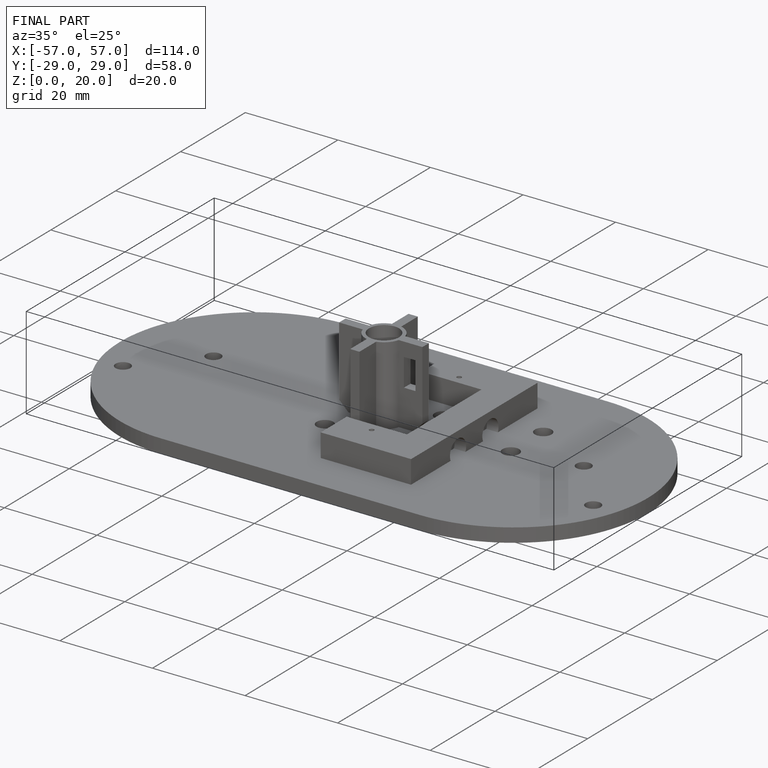
[diagram: finished part — iso view with bounding-box wireframe]
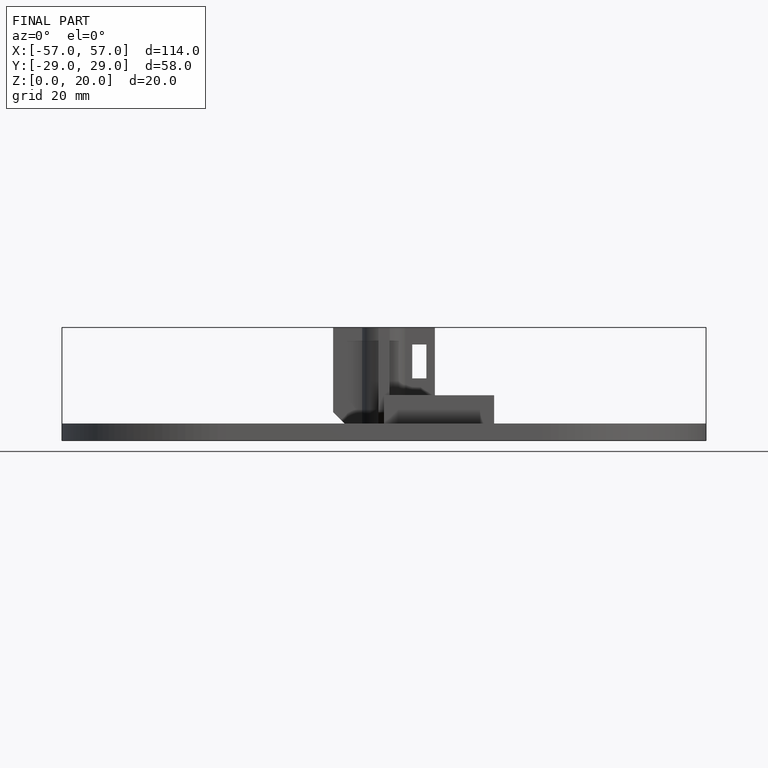
[diagram: finished part — front view with bounding-box wireframe]
